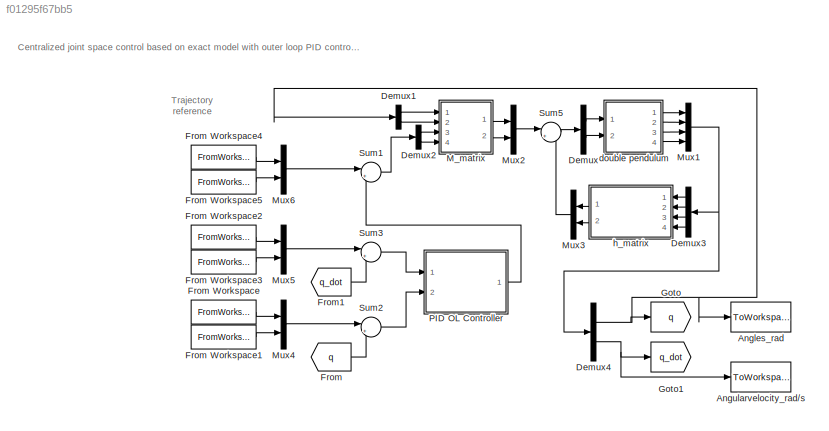
MODEL slx_f01295f67bb5
KIND model
CONFIG AbsTol = auto
CONFIG EnableMultiTasking = off
CONFIG FixedStep = auto
CONFIG MaxStep = auto
CONFIG MinStep = auto
CONFIG RelTol = 1e-3
CONFIG SampleTimeConstraint = Unconstrained
CONFIG Solver = VariableStepAuto
CONFIG SolverName = VariableStepAuto
CONFIG StartTime = 0.0
CONFIG StopTime = 10.0
BLOCK [ToWorkspace] Angles_rad
  FixptAsFi = on
  MaxDataPoints = inf
  Ports = [1]
  SampleTime = -1
  Save2DSignal = 3-D array (concatenate along third dimension)
  SaveFormat = Timeseries
  VariableName = q
BLOCK [ToWorkspace] Angularvelocity_rad//s
  FixptAsFi = on
  MaxDataPoints = inf
  Ports = [1]
  SampleTime = -1
  Save2DSignal = 3-D array (concatenate along third dimension)
  SaveFormat = Timeseries
  VariableName = q_dot
BLOCK [Demux] Demux
  DisplayOption = bar
  Outputs = 2
  Ports = [1, 2]
BLOCK [Demux] Demux1
  DisplayOption = bar
  Outputs = 2
  Ports = [1, 2]
BLOCK [Demux] Demux2
  DisplayOption = bar
  Outputs = 2
  Ports = [1, 2]
BLOCK [Demux] Demux3
  DisplayOption = bar
  Ports = [1, 4]
BLOCK [Demux] Demux4
  DisplayOption = bar
  Outputs = 2
  Ports = [1, 2]
BLOCK [From] From
  GotoTag = q
BLOCK [FromWorkspace] From Workspace
  SampleTime = 0
  VariableName = q1d
  ZeroCross = on
BLOCK [FromWorkspace] From Workspace1
  SampleTime = 0
  VariableName = q2d
  ZeroCross = on
BLOCK [FromWorkspace] From Workspace2
  SampleTime = 0
  VariableName = q1d_dot
  ZeroCross = on
BLOCK [FromWorkspace] From Workspace3
  SampleTime = 0
  VariableName = q2d_dot
  ZeroCross = on
BLOCK [FromWorkspace] From Workspace4
  SampleTime = 0
  VariableName = q1d_dotdot
  ZeroCross = on
BLOCK [FromWorkspace] From Workspace5
  SampleTime = 0
  VariableName = q2d_dotdot
  ZeroCross = on
BLOCK [From] From1
  GotoTag = q_dot
BLOCK [Goto] Goto
  GotoTag = q
BLOCK [Goto] Goto1
  GotoTag = q_dot
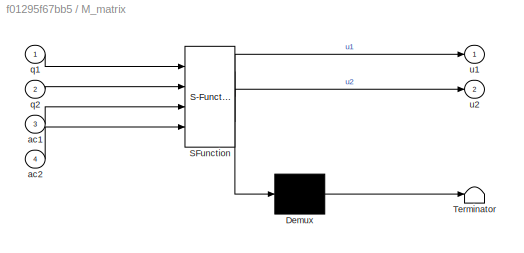
BLOCK [SubSystem] M_matrix 
  ErrorFcn = Stateflow.Translate.translate
  PermitHierarchicalResolution = ExplicitOnly
  Ports = [4, 2]
  RequestExecContextInheritance = off
  SFBlockType = MATLAB Function
  TreatAsAtomicUnit = on
BLOCK [Demux] M_matrix / Demux 
  Outputs = 1
  Ports = [1, 1]
BLOCK [S-Function] M_matrix / SFunction 
  EnableBusSupport = on
  FunctionName = sf_sfun
  PortCounts = [4 3]
  Ports = [4, 3]
  SFcnIsStateOwnerBlock = off
  SFunctionDeploymentMode = off
  Tag = Stateflow S-Function s_VI_exact_control_pid_OL 2
BLOCK [Terminator] M_matrix / Terminator 
BLOCK [Inport] M_matrix /ac1
  IconDisplay = Port number
  Port = 3
BLOCK [Inport] M_matrix /ac2
  IconDisplay = Port number
  Port = 4
BLOCK [Inport] M_matrix /q1
  IconDisplay = Port number
BLOCK [Inport] M_matrix /q2
  IconDisplay = Port number
  Port = 2
BLOCK [Outport] M_matrix /u1
  IconDisplay = Port number
BLOCK [Outport] M_matrix /u2
  IconDisplay = Port number
  Port = 2
BLOCK [Mux] Mux1
  DisplayOption = bar
  Ports = [4, 1]
BLOCK [Mux] Mux2
  DisplayOption = bar
  Inputs = 2
  Ports = [2, 1]
BLOCK [Mux] Mux3
  DisplayOption = bar
  Inputs = 2
  Ports = [2, 1]
BLOCK [Mux] Mux4
  DisplayOption = bar
  Inputs = 2
  Ports = [2, 1]
BLOCK [Mux] Mux5
  DisplayOption = bar
  Inputs = 2
  Ports = [2, 1]
BLOCK [Mux] Mux6
  DisplayOption = bar
  Inputs = 2
  Ports = [2, 1]
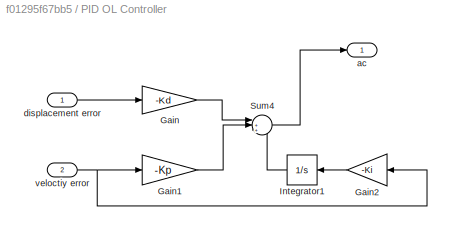
BLOCK [SubSystem] PID OL Controller
  Ports = [2, 1]
  RequestExecContextInheritance = off
BLOCK [Gain] PID OL Controller/Gain
  Gain = -Kd
  Multiplication = Matrix(K*u)
  OutDataTypeStr = Inherit: Inherit via internal rule
  ParamDataTypeStr = Inherit: Inherit via internal rule
  SaturateOnIntegerOverflow = off
BLOCK [Gain] PID OL Controller/Gain1
  Gain = -Kp
  Multiplication = Matrix(K*u)
  OutDataTypeStr = Inherit: Inherit via internal rule
  ParamDataTypeStr = Inherit: Inherit via internal rule
  SaturateOnIntegerOverflow = off
BLOCK [Gain] PID OL Controller/Gain2
  Gain = -Ki
  Multiplication = Matrix(K*u)
  OutDataTypeStr = Inherit: Inherit via internal rule
  ParamDataTypeStr = Inherit: Inherit via internal rule
  SaturateOnIntegerOverflow = off
BLOCK [Integrator] PID OL Controller/Integrator1
  Ports = [1, 1]
BLOCK [Sum] PID OL Controller/Sum4
  IconShape = round
  InputSameDT = off
  Inputs = |+++
  OutDataTypeStr = Inherit: Inherit via internal rule
  Ports = [3, 1]
  SaturateOnIntegerOverflow = off
BLOCK [Outport] PID OL Controller/ac
  IconDisplay = Port number
BLOCK [Inport] PID OL Controller/displacement error
  IconDisplay = Port number
BLOCK [Inport] PID OL Controller/veloctiy error
  IconDisplay = Port number
  Port = 2
BLOCK [Sum] Sum1
  IconShape = round
  InputSameDT = off
  Inputs = |+-
  OutDataTypeStr = Inherit: Inherit via internal rule
  Ports = [2, 1]
  SaturateOnIntegerOverflow = off
BLOCK [Sum] Sum2
  IconShape = round
  InputSameDT = off
  Inputs = |+-
  OutDataTypeStr = Inherit: Inherit via internal rule
  Ports = [2, 1]
  SaturateOnIntegerOverflow = off
BLOCK [Sum] Sum3
  IconShape = round
  InputSameDT = off
  Inputs = |+-
  OutDataTypeStr = Inherit: Inherit via internal rule
  Ports = [2, 1]
  SaturateOnIntegerOverflow = off
BLOCK [Sum] Sum5
  IconShape = round
  InputSameDT = off
  Inputs = |++
  OutDataTypeStr = Inherit: Inherit via internal rule
  Ports = [2, 1]
  SaturateOnIntegerOverflow = off
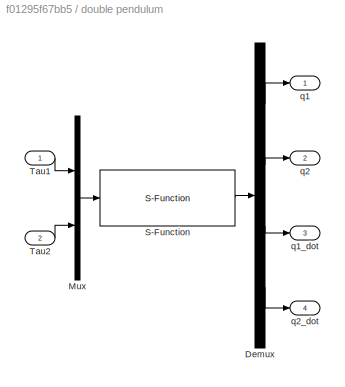
BLOCK [SubSystem] double pendulum 
  Ports = [2, 4]
  RequestExecContextInheritance = off
BLOCK [Demux] double pendulum /Demux
  DisplayOption = bar
  Ports = [1, 4]
BLOCK [Mux] double pendulum /Mux
  DisplayOption = bar
  Inputs = 2
  Ports = [2, 1]
BLOCK [S-Function] double pendulum /S-Function
  EnableBusSupport = off
  FunctionName = m_I_doublependulum
  Parameters = 0 0 0 0
  Ports = [1, 1]
  SFcnIsStateOwnerBlock = off
  SFunctionDeploymentMode = off
BLOCK [Inport] double pendulum /Tau1
  IconDisplay = Port number
BLOCK [Inport] double pendulum /Tau2 
  IconDisplay = Port number
  Port = 2
BLOCK [Outport] double pendulum /q1
  IconDisplay = Port number
BLOCK [Outport] double pendulum /q1_dot 
  IconDisplay = Port number
  Port = 3
BLOCK [Outport] double pendulum /q2 
  IconDisplay = Port number
  Port = 2
BLOCK [Outport] double pendulum /q2_dot
  IconDisplay = Port number
  Port = 4
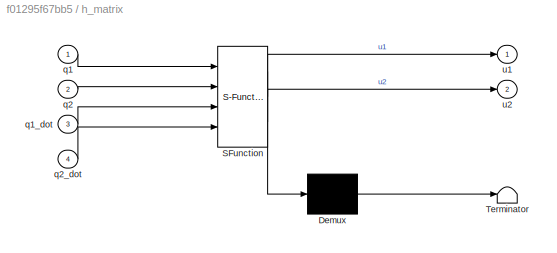
BLOCK [SubSystem] h_matrix 
  ErrorFcn = Stateflow.Translate.translate
  PermitHierarchicalResolution = ExplicitOnly
  Ports = [4, 2]
  RequestExecContextInheritance = off
  SFBlockType = MATLAB Function
  TreatAsAtomicUnit = on
BLOCK [Demux] h_matrix / Demux 
  Outputs = 1
  Ports = [1, 1]
BLOCK [S-Function] h_matrix / SFunction 
  EnableBusSupport = on
  FunctionName = sf_sfun
  PortCounts = [4 3]
  Ports = [4, 3]
  SFcnIsStateOwnerBlock = off
  SFunctionDeploymentMode = off
  Tag = Stateflow S-Function s_VI_exact_control_pid_OL 3
BLOCK [Terminator] h_matrix / Terminator 
BLOCK [Inport] h_matrix /q1
  IconDisplay = Port number
BLOCK [Inport] h_matrix /q1_dot
  IconDisplay = Port number
  Port = 3
BLOCK [Inport] h_matrix /q2
  IconDisplay = Port number
  Port = 2
BLOCK [Inport] h_matrix /q2_dot
  IconDisplay = Port number
  Port = 4
BLOCK [Outport] h_matrix /u1
  IconDisplay = Port number
BLOCK [Outport] h_matrix /u2
  IconDisplay = Port number
  Port = 2
ANNOTATION (root): Trajectory reference
ANNOTATION (root): Centralized joint space control based on exact model with outer loop PID controller
LINE Demux1:1 -> M_matrix :1
LINE Demux1:2 -> M_matrix :2
LINE Demux2:1 -> M_matrix :3
LINE Demux2:2 -> M_matrix :4
LINE Demux3:1 -> h_matrix :1
LINE Demux3:2 -> h_matrix :2
LINE Demux3:3 -> h_matrix :3
LINE Demux3:4 -> h_matrix :4
NET Demux4:1 -> Angles_rad:1, Demux1:1, Goto:1
NET Demux4:2 -> Angularvelocity_rad//s:1, Goto1:1
LINE Demux:1 -> double pendulum :1
LINE Demux:2 -> double pendulum :2
LINE From Workspace1:1 -> Mux4:2
LINE From Workspace2:1 -> Mux5:1
LINE From Workspace3:1 -> Mux5:2
LINE From Workspace4:1 -> Mux6:1
LINE From Workspace5:1 -> Mux6:2
LINE From Workspace:1 -> Mux4:1
LINE From1:1 -> Sum3:2
LINE From:1 -> Sum2:2
LINE M_matrix :1 -> Mux2:1
LINE M_matrix :2 -> Mux2:2
NET Mux1:1 -> Demux3:1, Demux4:1
LINE Mux2:1 -> Sum5:1
LINE Mux3:1 -> Sum5:2
LINE Mux4:1 -> Sum2:1
LINE Mux5:1 -> Sum3:1
LINE Mux6:1 -> Sum1:1
LINE PID OL Controller/Gain1:1 -> PID OL Controller/Sum4:2
LINE PID OL Controller/Gain2:1 -> PID OL Controller/Integrator1:1
LINE PID OL Controller/Gain:1 -> PID OL Controller/Sum4:1
LINE PID OL Controller/Integrator1:1 -> PID OL Controller/Sum4:3
LINE PID OL Controller/Sum4:1 -> PID OL Controller/ac:1
LINE PID OL Controller/displacement error:1 -> PID OL Controller/Gain:1
NET PID OL Controller/veloctiy error:1 -> PID OL Controller/Gain1:1, PID OL Controller/Gain2:1
LINE PID OL Controller:1 -> Sum1:2
LINE Sum1:1 -> Demux2:1
LINE Sum2:1 -> PID OL Controller:2
LINE Sum3:1 -> PID OL Controller:1
LINE Sum5:1 -> Demux:1
LINE double pendulum /Demux:1 -> double pendulum /q1:1
LINE double pendulum /Demux:2 -> double pendulum /q2 :1
LINE double pendulum /Demux:3 -> double pendulum /q1_dot :1
LINE double pendulum /Demux:4 -> double pendulum /q2_dot:1
LINE double pendulum /Mux:1 -> double pendulum /S-Function:1
LINE double pendulum /S-Function:1 -> double pendulum /Demux:1
LINE double pendulum /Tau1:1 -> double pendulum /Mux:1
LINE double pendulum /Tau2 :1 -> double pendulum /Mux:2
LINE double pendulum :1 -> Mux1:1
LINE double pendulum :2 -> Mux1:2
LINE double pendulum :3 -> Mux1:3
LINE double pendulum :4 -> Mux1:4
LINE h_matrix :1 -> Mux3:1
LINE h_matrix :2 -> Mux3:2
note: NET lines group one-source signal fan-out (src -> all destinations, sorted); 1:1 wires keep LINE
CHART M_matrix
 states=1 transitions=1
  STATE_LABEL 'eML_blk_kernel()'
  STATE_LABEL 'SCRIPT:\nfunction [u1,u2] = fcn(q1,q2,ac1,ac2)\nGrav=10;     %%Gravity acceleration constant\nM=1;       \nL1=1;\nL2=1;\nGz=1;\nbeta=20;\nTs=0.01;    %%sampling time\nG1=M*(L1^2+L2^2)+Gz;\nG2=M*L2^2+Gz;\nH11=G1+2*M*L1*L2*cos(q2);   H12=G2+  M*L1*L2*cos(q2);\nH21=G2+  M*L1*L2*cos(q2);   H22=G2;\n\nu1= H11*ac1+H12*ac2;\nu2= H21*ac1+H22*ac2;\n'
CHART h_matrix
 states=1 transitions=1
  STATE_LABEL 'eML_blk_kernel()'
  STATE_LABEL 'SCRIPT:\nfunction [u1,u2] = fcn(q1,q2,q1_dot,q2_dot)\nGrav=10;     %%Gravity acceleration constant\nM=1;       \nL1=1;\nL2=1;\nGz=1;\nbeta=20;\nG1=M*(L1^2+L2^2)+Gz;\nG2=M*L2^2+Gz;\nC11=-2*M*L1*L2*sin(q2)*q2_dot;  C12=-M*L1*L2*cos(q2)*q2_dot;\nC21=M*L1*L2*sin(q2)*q1_dot;     C22=0;\ng1=M*Grav*(L1*cos(q1)+L2*cos(q1+q2));    g2=M*Grav*L2*cos(q1+q2);\nu1=[C11 C12]*[q1_dot;q2_dot]+g1+[beta 0]*[q1_dot;q2_dot];\nu2=[C...<+52ch>'
